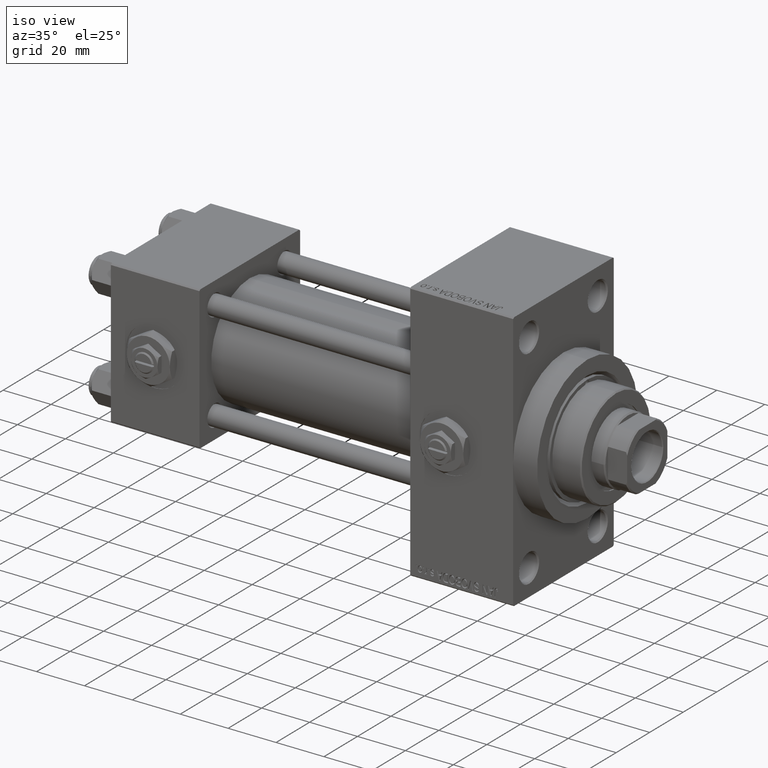
[diagram: clean part render]
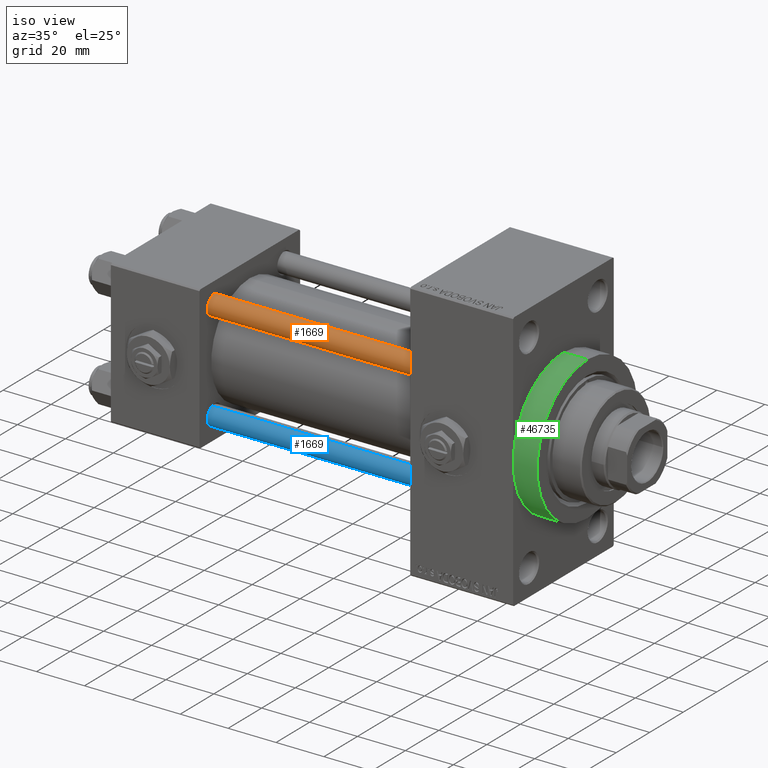
[diagram: same view with three faces highlighted in distinct colors, each labeled with its STEP entity id]
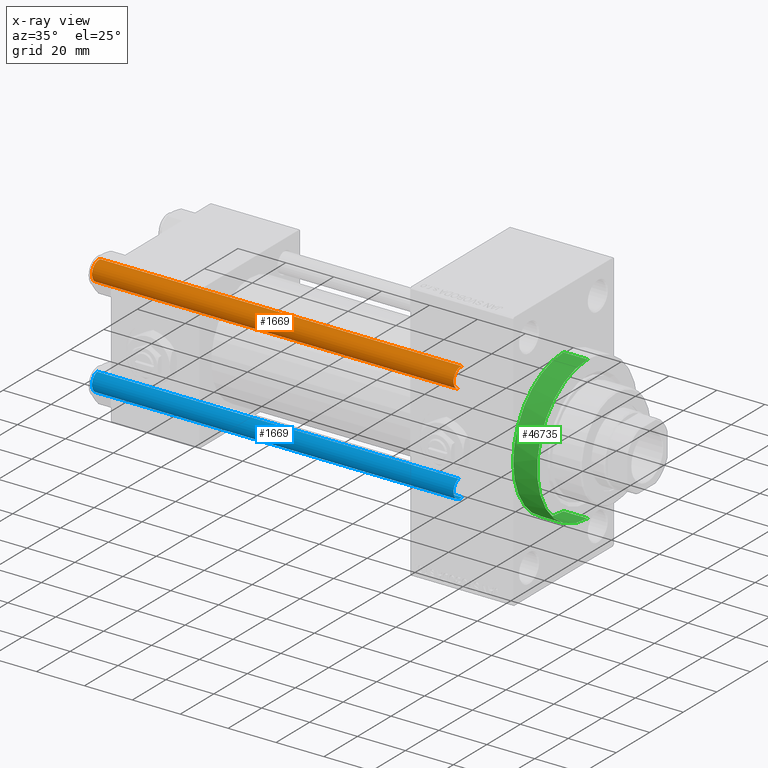
[diagram: x-ray of the same camera — body ghosted, the three highlighted faces saturated]
A machine part, iso view with three faces highlighted in distinct colors.
The next image is the same camera in x-ray (body ghosted, the three faces saturated) — at least one of them is partly hidden behind the body in this view.
Their STEP definitions:

[orange] entity #1669 — the highlighted cylindrical surface (edge-blend (fillet) strip) has radius 4 mm, axis along (1, 0, 0).
#239 = ORIENTED_EDGE ( 'NONE', *, *, #18260, .T. ) ;
#1130 = VERTEX_POINT ( 'NONE', #24842 ) ;
#1669 = ADVANCED_FACE ( 'NONE', ( #28923 ), #44234, .T. ) ;
#4052 = EDGE_CURVE ( 'NONE', #25126, #49097, #30854, .T. ) ;
#5629 = DIRECTION ( 'NONE',  ( 0.000000000000000000, 0.000000000000000000, -1.000000000000000000 ) ) ;
#6585 = DIRECTION ( 'NONE',  ( -1.000000000000000000, 0.000000000000000000, 0.000000000000000000 ) ) ;
#6651 = EDGE_CURVE ( 'NONE', #31342, #1130, #42186, .T. ) ;
#7452 = DIRECTION ( 'NONE',  ( -0.000000000000000000, -0.000000000000000000, 1.000000000000000000 ) ) ;
#7930 = DIRECTION ( 'NONE',  ( 1.000000000000000000, 0.000000000000000000, 0.000000000000000000 ) ) ;
#8764 = ORIENTED_EDGE ( 'NONE', *, *, #4052, .T. ) ;
#13038 = EDGE_LOOP ( 'NONE', ( #8764, #239, #19483, #49367 ) ) ;
#13641 = VECTOR ( 'NONE', #27432, 1000.000000000000000 ) ;
#14821 = CARTESIAN_POINT ( 'NONE',  ( 0.000000000000000000, 0.000000000000000000, 151.5000000000000284 ) ) ;
#18119 = DIRECTION ( 'NONE',  ( -0.000000000000000000, -0.000000000000000000, -1.000000000000000000 ) ) ;
#18260 = EDGE_CURVE ( 'NONE', #49097, #31342, #23915, .T. ) ;
#18621 = CARTESIAN_POINT ( 'NONE',  ( 0.000000000000000000, 0.000000000000000000, 152.0000000000000000 ) ) ;
#19483 = ORIENTED_EDGE ( 'NONE', *, *, #6651, .T. ) ;
#23915 = LINE ( 'NONE', #27934, #13641 ) ;
#24842 = CARTESIAN_POINT ( 'NONE',  ( -4.000000000000000000, 0.000000000000000000, 0.5000000000000281997 ) ) ;
#25126 = VERTEX_POINT ( 'NONE', #40671 ) ;
#26122 = CARTESIAN_POINT ( 'NONE',  ( 4.000000000000000000, 4.898587196589412829E-16, 151.5000000000000284 ) ) ;
#26367 = DIRECTION ( 'NONE',  ( 1.000000000000000000, 0.000000000000000000, 0.000000000000000000 ) ) ;
#26718 = LINE ( 'NONE', #38247, #33345 ) ;
#27432 = DIRECTION ( 'NONE',  ( -0.000000000000000000, -0.000000000000000000, -1.000000000000000000 ) ) ;
#27934 = CARTESIAN_POINT ( 'NONE',  ( 4.000000000000000000, 4.898587196589412829E-16, 152.0000000000000000 ) ) ;
#28923 = FACE_OUTER_BOUND ( 'NONE', #13038, .T. ) ;
#30276 = CARTESIAN_POINT ( 'NONE',  ( 0.000000000000000000, 0.000000000000000000, 0.5000000000000281997 ) ) ;
#30854 = CIRCLE ( 'NONE', #44520, 4.000000000000000000 ) ;
#31342 = VERTEX_POINT ( 'NONE', #45355 ) ;
#31670 = EDGE_CURVE ( 'NONE', #25126, #1130, #26718, .T. ) ;
#33345 = VECTOR ( 'NONE', #46267, 1000.000000000000000 ) ;
#35594 = AXIS2_PLACEMENT_3D ( 'NONE', #18621, #18119, #6585 ) ;
#38247 = CARTESIAN_POINT ( 'NONE',  ( -4.000000000000000000, 0.000000000000000000, 152.0000000000000000 ) ) ;
#39787 = AXIS2_PLACEMENT_3D ( 'NONE', #30276, #7452, #7930 ) ;
#40671 = CARTESIAN_POINT ( 'NONE',  ( -4.000000000000000000, 0.000000000000000000, 151.5000000000000284 ) ) ;
#42186 = CIRCLE ( 'NONE', #39787, 4.000000000000000000 ) ;
#44234 = CYLINDRICAL_SURFACE ( 'NONE', #35594, 4.000000000000000000 ) ;
#44520 = AXIS2_PLACEMENT_3D ( 'NONE', #14821, #5629, #26367 ) ;
#45355 = CARTESIAN_POINT ( 'NONE',  ( 4.000000000000000000, 4.898587196589412829E-16, 0.5000000000000281997 ) ) ;
#46267 = DIRECTION ( 'NONE',  ( -0.000000000000000000, -0.000000000000000000, -1.000000000000000000 ) ) ;
#49097 = VERTEX_POINT ( 'NONE', #26122 ) ;
#49367 = ORIENTED_EDGE ( 'NONE', *, *, #31670, .F. ) ;

[blue] entity #1669 — the highlighted cylindrical surface (edge-blend (fillet) strip) has radius 4 mm, axis along (-1, 0, 0).
#239 = ORIENTED_EDGE ( 'NONE', *, *, #18260, .T. ) ;
#1130 = VERTEX_POINT ( 'NONE', #24842 ) ;
#1669 = ADVANCED_FACE ( 'NONE', ( #28923 ), #44234, .T. ) ;
#4052 = EDGE_CURVE ( 'NONE', #25126, #49097, #30854, .T. ) ;
#5629 = DIRECTION ( 'NONE',  ( 0.000000000000000000, 0.000000000000000000, -1.000000000000000000 ) ) ;
#6585 = DIRECTION ( 'NONE',  ( -1.000000000000000000, 0.000000000000000000, 0.000000000000000000 ) ) ;
#6651 = EDGE_CURVE ( 'NONE', #31342, #1130, #42186, .T. ) ;
#7452 = DIRECTION ( 'NONE',  ( -0.000000000000000000, -0.000000000000000000, 1.000000000000000000 ) ) ;
#7930 = DIRECTION ( 'NONE',  ( 1.000000000000000000, 0.000000000000000000, 0.000000000000000000 ) ) ;
#8764 = ORIENTED_EDGE ( 'NONE', *, *, #4052, .T. ) ;
#13038 = EDGE_LOOP ( 'NONE', ( #8764, #239, #19483, #49367 ) ) ;
#13641 = VECTOR ( 'NONE', #27432, 1000.000000000000000 ) ;
#14821 = CARTESIAN_POINT ( 'NONE',  ( 0.000000000000000000, 0.000000000000000000, 151.5000000000000284 ) ) ;
#18119 = DIRECTION ( 'NONE',  ( -0.000000000000000000, -0.000000000000000000, -1.000000000000000000 ) ) ;
#18260 = EDGE_CURVE ( 'NONE', #49097, #31342, #23915, .T. ) ;
#18621 = CARTESIAN_POINT ( 'NONE',  ( 0.000000000000000000, 0.000000000000000000, 152.0000000000000000 ) ) ;
#19483 = ORIENTED_EDGE ( 'NONE', *, *, #6651, .T. ) ;
#23915 = LINE ( 'NONE', #27934, #13641 ) ;
#24842 = CARTESIAN_POINT ( 'NONE',  ( -4.000000000000000000, 0.000000000000000000, 0.5000000000000281997 ) ) ;
#25126 = VERTEX_POINT ( 'NONE', #40671 ) ;
#26122 = CARTESIAN_POINT ( 'NONE',  ( 4.000000000000000000, 4.898587196589412829E-16, 151.5000000000000284 ) ) ;
#26367 = DIRECTION ( 'NONE',  ( 1.000000000000000000, 0.000000000000000000, 0.000000000000000000 ) ) ;
#26718 = LINE ( 'NONE', #38247, #33345 ) ;
#27432 = DIRECTION ( 'NONE',  ( -0.000000000000000000, -0.000000000000000000, -1.000000000000000000 ) ) ;
#27934 = CARTESIAN_POINT ( 'NONE',  ( 4.000000000000000000, 4.898587196589412829E-16, 152.0000000000000000 ) ) ;
#28923 = FACE_OUTER_BOUND ( 'NONE', #13038, .T. ) ;
#30276 = CARTESIAN_POINT ( 'NONE',  ( 0.000000000000000000, 0.000000000000000000, 0.5000000000000281997 ) ) ;
#30854 = CIRCLE ( 'NONE', #44520, 4.000000000000000000 ) ;
#31342 = VERTEX_POINT ( 'NONE', #45355 ) ;
#31670 = EDGE_CURVE ( 'NONE', #25126, #1130, #26718, .T. ) ;
#33345 = VECTOR ( 'NONE', #46267, 1000.000000000000000 ) ;
#35594 = AXIS2_PLACEMENT_3D ( 'NONE', #18621, #18119, #6585 ) ;
#38247 = CARTESIAN_POINT ( 'NONE',  ( -4.000000000000000000, 0.000000000000000000, 152.0000000000000000 ) ) ;
#39787 = AXIS2_PLACEMENT_3D ( 'NONE', #30276, #7452, #7930 ) ;
#40671 = CARTESIAN_POINT ( 'NONE',  ( -4.000000000000000000, 0.000000000000000000, 151.5000000000000284 ) ) ;
#42186 = CIRCLE ( 'NONE', #39787, 4.000000000000000000 ) ;
#44234 = CYLINDRICAL_SURFACE ( 'NONE', #35594, 4.000000000000000000 ) ;
#44520 = AXIS2_PLACEMENT_3D ( 'NONE', #14821, #5629, #26367 ) ;
#45355 = CARTESIAN_POINT ( 'NONE',  ( 4.000000000000000000, 4.898587196589412829E-16, 0.5000000000000281997 ) ) ;
#46267 = DIRECTION ( 'NONE',  ( -0.000000000000000000, -0.000000000000000000, -1.000000000000000000 ) ) ;
#49097 = VERTEX_POINT ( 'NONE', #26122 ) ;
#49367 = ORIENTED_EDGE ( 'NONE', *, *, #31670, .F. ) ;

[green] entity #46735 — the highlighted cylindrical surface (partial cylindrical patch) has radius 30 mm, axis along (-1, -0, -0).
#1197 = AXIS2_PLACEMENT_3D ( 'NONE', #14437, #26225, #6911 ) ;
#1873 = CARTESIAN_POINT ( 'NONE',  ( 178.0000000000000000, 3.673940397442059178E-15, -30.00000000000000000 ) ) ;
#1988 = ORIENTED_EDGE ( 'NONE', *, *, #42500, .T. ) ;
#2124 = DIRECTION ( 'NONE',  ( -1.000000000000000000, -0.000000000000000000, -0.000000000000000000 ) ) ;
#2682 = EDGE_CURVE ( 'NONE', #24915, #5782, #11599, .T. ) ;
#3755 = VERTEX_POINT ( 'NONE', #10449 ) ;
#4258 = CARTESIAN_POINT ( 'NONE',  ( 167.9999999999999716, 3.673940397442059178E-15, -30.00000000000000000 ) ) ;
#4488 = ORIENTED_EDGE ( 'NONE', *, *, #11188, .F. ) ;
#5026 = FACE_OUTER_BOUND ( 'NONE', #30150, .T. ) ;
#5782 = VERTEX_POINT ( 'NONE', #10953 ) ;
#6726 = DIRECTION ( 'NONE',  ( 1.000000000000000000, 0.000000000000000000, 0.000000000000000000 ) ) ;
#6911 = DIRECTION ( 'NONE',  ( 0.000000000000000000, 0.000000000000000000, -1.000000000000000000 ) ) ;
#7238 = DIRECTION ( 'NONE',  ( 0.000000000000000000, 0.000000000000000000, -1.000000000000000000 ) ) ;
#7241 = AXIS2_PLACEMENT_3D ( 'NONE', #34773, #27742, #12200 ) ;
#10449 = CARTESIAN_POINT ( 'NONE',  ( 167.9999999999999716, -30.00000000000000000, 0.000000000000000000 ) ) ;
#10912 = VERTEX_POINT ( 'NONE', #4258 ) ;
#10953 = CARTESIAN_POINT ( 'NONE',  ( 178.0000000000000000, 3.673940397442059178E-15, -30.00000000000000000 ) ) ;
#11188 = EDGE_CURVE ( 'NONE', #5782, #10912, #36228, .T. ) ;
#11599 = CIRCLE ( 'NONE', #1197, 30.00000000000000000 ) ;
#11781 = VECTOR ( 'NONE', #2124, 1000.000000000000000 ) ;
#12112 = CARTESIAN_POINT ( 'NONE',  ( 178.0000000000000000, 0.000000000000000000, 30.00000000000000000 ) ) ;
#12200 = DIRECTION ( 'NONE',  ( 0.000000000000000000, 0.000000000000000000, -1.000000000000000000 ) ) ;
#13880 = VERTEX_POINT ( 'NONE', #14270 ) ;
#14270 = CARTESIAN_POINT ( 'NONE',  ( 167.9999999999999716, 0.000000000000000000, 30.00000000000000000 ) ) ;
#14437 = CARTESIAN_POINT ( 'NONE',  ( 178.0000000000000000, 0.000000000000000000, 0.000000000000000000 ) ) ;
#18032 = EDGE_CURVE ( 'NONE', #13880, #3755, #29685, .T. ) ;
#18505 = CARTESIAN_POINT ( 'NONE',  ( 178.0000000000000000, 0.000000000000000000, 30.00000000000000000 ) ) ;
#18528 = CARTESIAN_POINT ( 'NONE',  ( 167.9999999999999716, 0.000000000000000000, 0.000000000000000000 ) ) ;
#19841 = DIRECTION ( 'NONE',  ( -1.000000000000000000, -0.000000000000000000, -0.000000000000000000 ) ) ;
#21067 = ORIENTED_EDGE ( 'NONE', *, *, #33891, .T. ) ;
#24915 = VERTEX_POINT ( 'NONE', #12112 ) ;
#24965 = AXIS2_PLACEMENT_3D ( 'NONE', #47179, #19841, #27118 ) ;
#25038 = ORIENTED_EDGE ( 'NONE', *, *, #2682, .F. ) ;
#26225 = DIRECTION ( 'NONE',  ( 1.000000000000000000, 0.000000000000000000, 0.000000000000000000 ) ) ;
#27118 = DIRECTION ( 'NONE',  ( 0.000000000000000000, 0.000000000000000000, 1.000000000000000000 ) ) ;
#27742 = DIRECTION ( 'NONE',  ( 1.000000000000000000, 0.000000000000000000, 0.000000000000000000 ) ) ;
#29685 = CIRCLE ( 'NONE', #7241, 30.00000000000000000 ) ;
#30150 = EDGE_LOOP ( 'NONE', ( #4488, #25038, #21067, #45101, #1988 ) ) ;
#30873 = CYLINDRICAL_SURFACE ( 'NONE', #24965, 30.00000000000000000 ) ;
#33418 = VECTOR ( 'NONE', #45091, 1000.000000000000000 ) ;
#33891 = EDGE_CURVE ( 'NONE', #24915, #13880, #34034, .T. ) ;
#34034 = LINE ( 'NONE', #18505, #33418 ) ;
#34773 = CARTESIAN_POINT ( 'NONE',  ( 167.9999999999999716, 0.000000000000000000, 0.000000000000000000 ) ) ;
#35248 = AXIS2_PLACEMENT_3D ( 'NONE', #18528, #6726, #7238 ) ;
#36228 = LINE ( 'NONE', #1873, #11781 ) ;
#42500 = EDGE_CURVE ( 'NONE', #3755, #10912, #46240, .T. ) ;
#45091 = DIRECTION ( 'NONE',  ( -1.000000000000000000, -0.000000000000000000, -0.000000000000000000 ) ) ;
#45101 = ORIENTED_EDGE ( 'NONE', *, *, #18032, .T. ) ;
#46240 = CIRCLE ( 'NONE', #35248, 30.00000000000000000 ) ;
#46735 = ADVANCED_FACE ( 'NONE', ( #5026 ), #30873, .T. ) ;
#47179 = CARTESIAN_POINT ( 'NONE',  ( 178.0000000000000000, 0.000000000000000000, 0.000000000000000000 ) ) ;